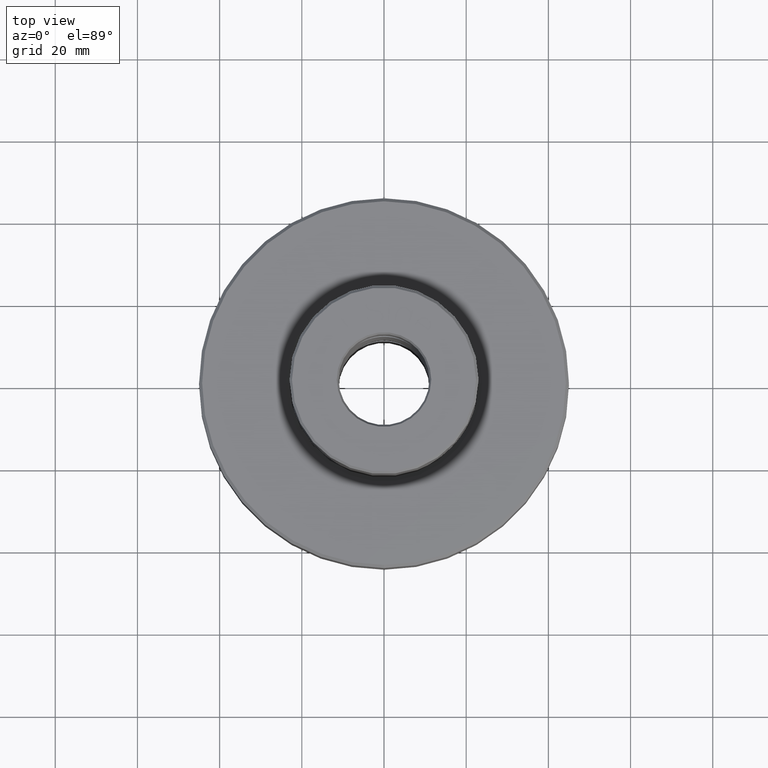
[diagram: clean part render]
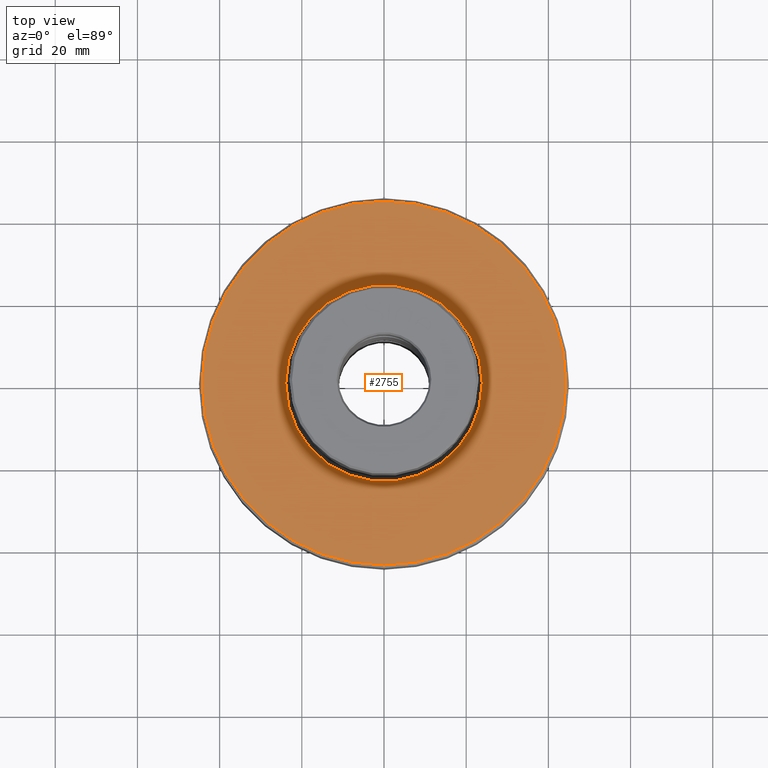
[diagram: same view with one face highlighted and labeled with its STEP entity id]
A machine part, top view. The second image highlights one B-rep face of the part: STEP entity #2755.
In plain terms, the highlighted planar face has unit normal (0, 0, -1).
Its self-contained STEP definition (entity closure, byte-faithful):
#1263=EDGE_CURVE('NONE',#2401,#2545,#3630,.T.);
#2193=EDGE_CURVE('NONE',#3455,#2979,#4642,.T.);
#2401=VERTEX_POINT('NONE',#4885);
#2545=VERTEX_POINT('NONE',#5040);
#2755=ADVANCED_FACE('NONE',(#5276,#5277),#5278,.F.);
#2767=EDGE_CURVE('NONE',#2545,#2401,#5292,.T.);
#2979=VERTEX_POINT('NONE',#5537);
#3455=VERTEX_POINT('NONE',#6068);
#3497=EDGE_CURVE('NONE',#2979,#3455,#6115,.T.);
#3630=CIRCLE('',#6466,23.8988389506859);
#4642=CIRCLE('',#10724,44.25);
#4885=CARTESIAN_POINT('',(-23.8988389506859,8.63690655489515E-014,-49.7));
#5040=CARTESIAN_POINT('',(23.8988389506859,-8.34423985461527E-014,-49.7));
#5276=FACE_OUTER_BOUND('',#13093,.T.);
#5277=FACE_BOUND('',#13094,.T.);
#5278=PLANE('',#13095);
#5292=CIRCLE('',#13114,23.8988389506859);
#5537=CARTESIAN_POINT('',(-5.46480585393236E-015,44.25,-49.7));
#6068=CARTESIAN_POINT('',(0.0,-44.25,-49.7));
#6115=CIRCLE('',#15654,44.25);
#6466=AXIS2_PLACEMENT_3D('',#15869,#15870,#15871);
#10724=AXIS2_PLACEMENT_3D('',#16639,#16640,#16641);
#13093=EDGE_LOOP('',(#17279,#17280));
#13094=EDGE_LOOP('',(#17281,#17282));
#13095=AXIS2_PLACEMENT_3D('',#17283,#17284,#17285);
#13114=AXIS2_PLACEMENT_3D('',#17304,#17305,#17306);
#15654=AXIS2_PLACEMENT_3D('',#18105,#18106,#18107);
#15869=CARTESIAN_POINT('',(0.0,0.0,-49.7));
#15870=DIRECTION('',(0.0,0.0,1.0));
#15871=DIRECTION('',(1.0,-3.49148336110938E-015,-0.0));
#16639=CARTESIAN_POINT('',(0.0,0.0,-49.7));
#16640=DIRECTION('',(-0.0,0.0,1.0));
#16641=DIRECTION('',(0.0,-1.0,0.0));
#17279=ORIENTED_EDGE('',*,*,#2193,.T.);
#17280=ORIENTED_EDGE('',*,*,#3497,.T.);
#17281=ORIENTED_EDGE('',*,*,#2767,.F.);
#17282=ORIENTED_EDGE('',*,*,#1263,.F.);
#17283=CARTESIAN_POINT('',(1.57116751249922E-013,45.0,-49.7));
#17284=DIRECTION('',(0.0,0.0,-1.0));
#17285=DIRECTION('',(-1.0,0.0,0.0));
#17304=CARTESIAN_POINT('',(0.0,0.0,-49.7));
#17305=DIRECTION('',(0.0,0.0,1.0));
#17306=DIRECTION('',(1.0,-3.49148336110938E-015,-0.0));
#18105=CARTESIAN_POINT('',(0.0,0.0,-49.7));
#18106=DIRECTION('',(-0.0,0.0,1.0));
#18107=DIRECTION('',(0.0,-1.0,0.0));